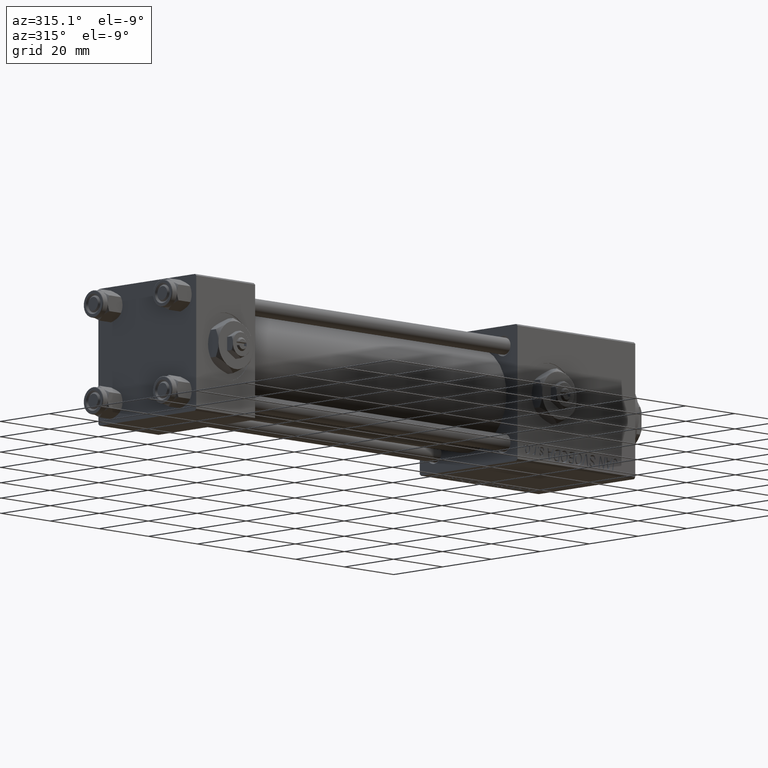
[diagram: clean part render]
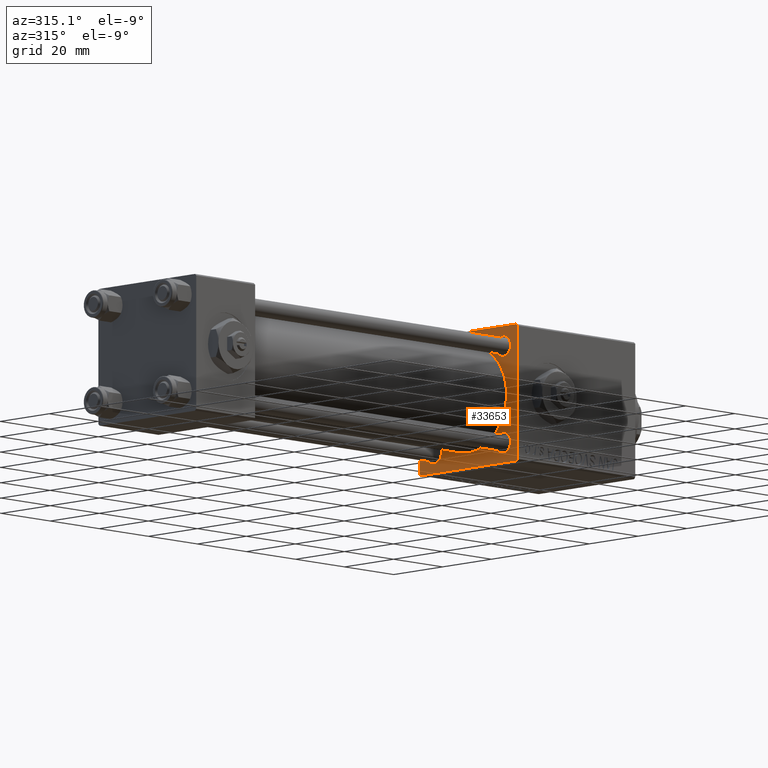
[diagram: same view with one face highlighted and labeled with its STEP entity id]
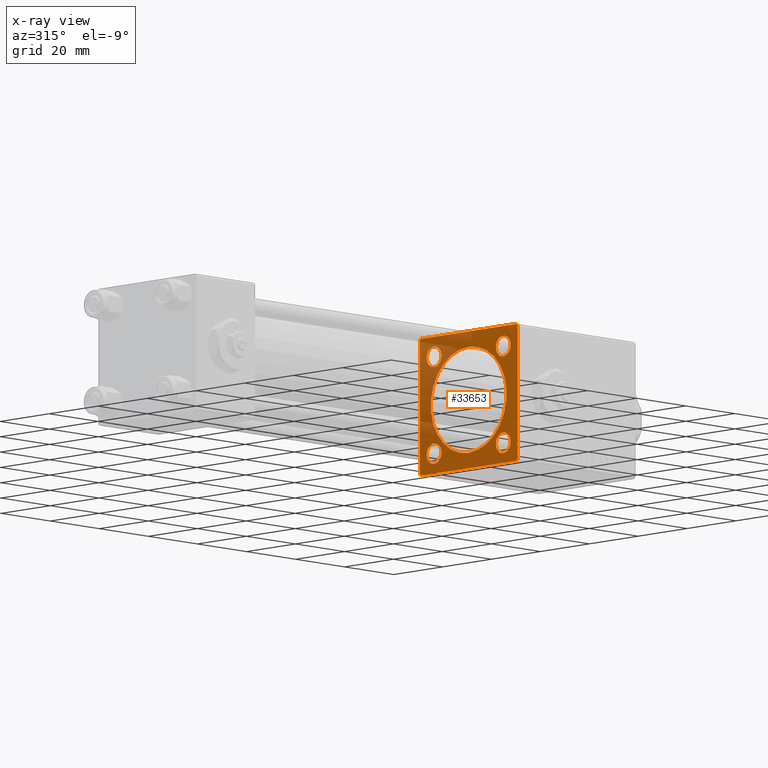
[diagram: x-ray of the same camera — body ghosted, the highlighted face saturated]
A machine part, auxiliary view. The second image highlights one B-rep face of the part: STEP entity #33653.
The next image is the same camera in x-ray: the body ghosted, the highlighted face saturated — about 35% of this face is hidden behind the body in this view.
In plain terms, the highlighted planar face has unit normal (-1, 0, 0).
Its self-contained STEP definition (entity closure, byte-faithful):
#16 = DIRECTION ( 'NONE',  ( -1.000000000000000000, 0.000000000000000000, -0.000000000000000000 ) ) ;
#138 = DIRECTION ( 'NONE',  ( 0.000000000000000000, 0.7071067811865474617, -0.7071067811865474617 ) ) ;
#258 = CARTESIAN_POINT ( 'NONE',  ( 131.0000000000000000, 14.15000000000000036, -14.15000000000000036 ) ) ;
#328 = DIRECTION ( 'NONE',  ( 0.000000000000000000, -1.000000000000000000, -8.673617379884035472E-17 ) ) ;
#1021 = VERTEX_POINT ( 'NONE', #23909 ) ;
#1230 = DIRECTION ( 'NONE',  ( 1.000000000000000000, 0.000000000000000000, 0.000000000000000000 ) ) ;
#1456 = CARTESIAN_POINT ( 'NONE',  ( 131.0000000000000000, 14.15000000000000036, -11.14999999999999680 ) ) ;
#1510 = VERTEX_POINT ( 'NONE', #10041 ) ;
#1613 = ORIENTED_EDGE ( 'NONE', *, *, #13626, .T. ) ;
#1851 = CIRCLE ( 'NONE', #6072, 3.000000000000004441 ) ;
#2056 = DIRECTION ( 'NONE',  ( 0.000000000000000000, 0.000000000000000000, 1.000000000000000000 ) ) ;
#2441 = LINE ( 'NONE', #42074, #38300 ) ;
#2598 = ORIENTED_EDGE ( 'NONE', *, *, #11548, .T. ) ;
#3222 = VERTEX_POINT ( 'NONE', #22566 ) ;
#3459 = FACE_BOUND ( 'NONE', #3840, .T. ) ;
#3511 = ORIENTED_EDGE ( 'NONE', *, *, #39711, .T. ) ;
#3726 = FACE_BOUND ( 'NONE', #39046, .T. ) ;
#3840 = EDGE_LOOP ( 'NONE', ( #9788, #48462 ) ) ;
#3848 = DIRECTION ( 'NONE',  ( 1.000000000000000000, 0.000000000000000000, 0.000000000000000000 ) ) ;
#4048 = CARTESIAN_POINT ( 'NONE',  ( 131.0000000000000000, -19.50000000000006040, 19.99999999999999645 ) ) ;
#4969 = CARTESIAN_POINT ( 'NONE',  ( 131.0000000000000000, 14.15000000000000036, -14.15000000000000036 ) ) ;
#5129 = CARTESIAN_POINT ( 'NONE',  ( 131.0000000000000000, 19.99999999999999645, 20.00000000000000000 ) ) ;
#5194 = AXIS2_PLACEMENT_3D ( 'NONE', #4969, #40935, #8451 ) ;
#5241 = VERTEX_POINT ( 'NONE', #46606 ) ;
#5389 = LINE ( 'NONE', #5129, #12959 ) ;
#5433 = VERTEX_POINT ( 'NONE', #24924 ) ;
#6035 = AXIS2_PLACEMENT_3D ( 'NONE', #40059, #3848, #7018 ) ;
#6072 = AXIS2_PLACEMENT_3D ( 'NONE', #23000, #31190, #51506 ) ;
#6464 = ORIENTED_EDGE ( 'NONE', *, *, #26534, .T. ) ;
#7018 = DIRECTION ( 'NONE',  ( 0.000000000000000000, 0.000000000000000000, -1.000000000000000000 ) ) ;
#7798 = CIRCLE ( 'NONE', #5194, 3.000000000000004441 ) ;
#7947 = CIRCLE ( 'NONE', #8797, 3.000000000000004441 ) ;
#7960 = FACE_BOUND ( 'NONE', #41612, .T. ) ;
#8451 = DIRECTION ( 'NONE',  ( 0.000000000000000000, 0.000000000000000000, 1.000000000000000000 ) ) ;
#8628 = ORIENTED_EDGE ( 'NONE', *, *, #27354, .T. ) ;
#8764 = AXIS2_PLACEMENT_3D ( 'NONE', #9457, #41426, #36962 ) ;
#8789 = CARTESIAN_POINT ( 'NONE',  ( 131.0000000000000000, -20.00000000000000000, -19.50000000000002487 ) ) ;
#8797 = AXIS2_PLACEMENT_3D ( 'NONE', #18962, #14994, #2056 ) ;
#9186 = EDGE_CURVE ( 'NONE', #22460, #31987, #28833, .T. ) ;
#9457 = CARTESIAN_POINT ( 'NONE',  ( 131.0000000000000000, -2.602085213965210642E-15, 0.000000000000000000 ) ) ;
#9788 = ORIENTED_EDGE ( 'NONE', *, *, #22536, .T. ) ;
#10041 = CARTESIAN_POINT ( 'NONE',  ( 131.0000000000000000, -19.50000000000002487, -20.00000000000000000 ) ) ;
#10209 = CARTESIAN_POINT ( 'NONE',  ( 131.0000000000000000, 19.99999999999999645, 19.50000000000002842 ) ) ;
#10965 = ORIENTED_EDGE ( 'NONE', *, *, #18113, .F. ) ;
#11074 = CARTESIAN_POINT ( 'NONE',  ( 131.0000000000000000, -14.15000000000000036, -17.15000000000000568 ) ) ;
#11371 = VERTEX_POINT ( 'NONE', #25640 ) ;
#11548 = EDGE_CURVE ( 'NONE', #21611, #43661, #16206, .T. ) ;
#12410 = CARTESIAN_POINT ( 'NONE',  ( 131.0000000000000000, -14.15000000000000036, 14.15000000000000036 ) ) ;
#12430 = DIRECTION ( 'NONE',  ( 1.000000000000000000, 0.000000000000000000, 0.000000000000000000 ) ) ;
#12959 = VECTOR ( 'NONE', #46065, 1000.000000000000000 ) ;
#13255 = EDGE_CURVE ( 'NONE', #24492, #1021, #23823, .T. ) ;
#13626 = EDGE_CURVE ( 'NONE', #19645, #1510, #16338, .T. ) ;
#13648 = AXIS2_PLACEMENT_3D ( 'NONE', #12410, #28541, #33551 ) ;
#13791 = CIRCLE ( 'NONE', #8764, 15.50000000000000000 ) ;
#13905 = AXIS2_PLACEMENT_3D ( 'NONE', #48087, #16, #35987 ) ;
#13991 = EDGE_CURVE ( 'NONE', #11371, #34656, #36521, .T. ) ;
#14475 = VERTEX_POINT ( 'NONE', #4048 ) ;
#14489 = AXIS2_PLACEMENT_3D ( 'NONE', #258, #17591, #45587 ) ;
#14668 = ORIENTED_EDGE ( 'NONE', *, *, #31968, .F. ) ;
#14698 = DIRECTION ( 'NONE',  ( -0.000000000000000000, 0.7071067811865279218, 0.7071067811865671127 ) ) ;
#14994 = DIRECTION ( 'NONE',  ( 1.000000000000000000, 0.000000000000000000, 0.000000000000000000 ) ) ;
#16206 = CIRCLE ( 'NONE', #14489, 3.000000000000004441 ) ;
#16338 = LINE ( 'NONE', #40385, #31405 ) ;
#17268 = VECTOR ( 'NONE', #43531, 1000.000000000000000 ) ;
#17591 = DIRECTION ( 'NONE',  ( 1.000000000000000000, 0.000000000000000000, 0.000000000000000000 ) ) ;
#17845 = VERTEX_POINT ( 'NONE', #32891 ) ;
#18113 = EDGE_CURVE ( 'NONE', #3222, #14475, #36560, .T. ) ;
#18293 = DIRECTION ( 'NONE',  ( 0.000000000000000000, -0.7071067811865474617, 0.7071067811865474617 ) ) ;
#18962 = CARTESIAN_POINT ( 'NONE',  ( 131.0000000000000000, 14.15000000000000036, 14.15000000000000036 ) ) ;
#19057 = CIRCLE ( 'NONE', #39323, 3.000000000000004441 ) ;
#19452 = DIRECTION ( 'NONE',  ( 0.000000000000000000, 0.000000000000000000, 1.000000000000000000 ) ) ;
#19495 = EDGE_LOOP ( 'NONE', ( #6464, #33792 ) ) ;
#19645 = VERTEX_POINT ( 'NONE', #39352 ) ;
#19733 = LINE ( 'NONE', #35877, #37789 ) ;
#20219 = LINE ( 'NONE', #36366, #34461 ) ;
#21611 = VERTEX_POINT ( 'NONE', #1456 ) ;
#21795 = CARTESIAN_POINT ( 'NONE',  ( 131.0000000000000000, 14.15000000000000036, 17.15000000000000568 ) ) ;
#22200 = CARTESIAN_POINT ( 'NONE',  ( 131.0000000000000000, -7.038826752868131828E-16, -15.50000000000000000 ) ) ;
#22460 = VERTEX_POINT ( 'NONE', #22200 ) ;
#22536 = EDGE_CURVE ( 'NONE', #38733, #5433, #1851, .T. ) ;
#22566 = CARTESIAN_POINT ( 'NONE',  ( 131.0000000000000000, 19.50000000000002487, 20.00000000000000000 ) ) ;
#22777 = EDGE_CURVE ( 'NONE', #43661, #21611, #7798, .T. ) ;
#23000 = CARTESIAN_POINT ( 'NONE',  ( 131.0000000000000000, 14.15000000000000036, 14.15000000000000036 ) ) ;
#23193 = CARTESIAN_POINT ( 'NONE',  ( 131.0000000000000000, -20.00000000000000355, 19.99999999999999645 ) ) ;
#23505 = DIRECTION ( 'NONE',  ( 1.000000000000000000, 0.000000000000000000, 0.000000000000000000 ) ) ;
#23543 = FACE_OUTER_BOUND ( 'NONE', #25511, .T. ) ;
#23823 = CIRCLE ( 'NONE', #13648, 3.000000000000004441 ) ;
#23909 = CARTESIAN_POINT ( 'NONE',  ( 131.0000000000000000, -14.15000000000000036, 17.15000000000000568 ) ) ;
#24012 = VECTOR ( 'NONE', #328, 1000.000000000000000 ) ;
#24492 = VERTEX_POINT ( 'NONE', #27496 ) ;
#24924 = CARTESIAN_POINT ( 'NONE',  ( 131.0000000000000000, 14.15000000000000036, 11.14999999999999680 ) ) ;
#25222 = VECTOR ( 'NONE', #14698, 1000.000000000000000 ) ;
#25511 = EDGE_LOOP ( 'NONE', ( #1613, #8628, #14668, #32306, #10965, #37542, #32484, #3511 ) ) ;
#25640 = CARTESIAN_POINT ( 'NONE',  ( 131.0000000000000000, -14.15000000000000036, -11.14999999999999680 ) ) ;
#26534 = EDGE_CURVE ( 'NONE', #31987, #22460, #13791, .T. ) ;
#27354 = EDGE_CURVE ( 'NONE', #1510, #44126, #2441, .T. ) ;
#27496 = CARTESIAN_POINT ( 'NONE',  ( 131.0000000000000000, -14.15000000000000036, 11.14999999999999503 ) ) ;
#27996 = CARTESIAN_POINT ( 'NONE',  ( 131.0000000000000000, -14.15000000000000036, -14.15000000000000036 ) ) ;
#28541 = DIRECTION ( 'NONE',  ( 1.000000000000000000, 0.000000000000000000, 0.000000000000000000 ) ) ;
#28562 = DIRECTION ( 'NONE',  ( 0.000000000000000000, 0.000000000000000000, 1.000000000000000000 ) ) ;
#28833 = CIRCLE ( 'NONE', #6035, 15.50000000000000000 ) ;
#30299 = EDGE_CURVE ( 'NONE', #47993, #5241, #5389, .T. ) ;
#31065 = EDGE_CURVE ( 'NONE', #5433, #38733, #7947, .T. ) ;
#31082 = LINE ( 'NONE', #51141, #25222 ) ;
#31190 = DIRECTION ( 'NONE',  ( 1.000000000000000000, 0.000000000000000000, 0.000000000000000000 ) ) ;
#31405 = VECTOR ( 'NONE', #44836, 1000.000000000000000 ) ;
#31968 = EDGE_CURVE ( 'NONE', #17845, #44126, #38803, .T. ) ;
#31987 = VERTEX_POINT ( 'NONE', #43271 ) ;
#32306 = ORIENTED_EDGE ( 'NONE', *, *, #51836, .T. ) ;
#32484 = ORIENTED_EDGE ( 'NONE', *, *, #30299, .T. ) ;
#32891 = CARTESIAN_POINT ( 'NONE',  ( 131.0000000000000000, -20.00000000000000355, 19.50000000000002487 ) ) ;
#33085 = CARTESIAN_POINT ( 'NONE',  ( 131.0000000000000000, 19.99999999999999645, 20.00000000000000000 ) ) ;
#33551 = DIRECTION ( 'NONE',  ( 0.000000000000000000, 0.000000000000000000, 1.000000000000000000 ) ) ;
#33653 = ADVANCED_FACE ( 'NONE', ( #39673, #3459, #3726, #7960, #40193, #23543 ), #43879, .T. ) ;
#33792 = ORIENTED_EDGE ( 'NONE', *, *, #9186, .T. ) ;
#34461 = VECTOR ( 'NONE', #138, 1000.000000000000114 ) ;
#34656 = VERTEX_POINT ( 'NONE', #11074 ) ;
#35419 = EDGE_CURVE ( 'NONE', #34656, #11371, #19057, .T. ) ;
#35877 = CARTESIAN_POINT ( 'NONE',  ( 131.0000000000000000, 19.74999999999999645, -19.74999999999999645 ) ) ;
#35987 = DIRECTION ( 'NONE',  ( -0.000000000000000000, 0.000000000000000000, 1.000000000000000000 ) ) ;
#36150 = EDGE_LOOP ( 'NONE', ( #45963, #45570 ) ) ;
#36366 = CARTESIAN_POINT ( 'NONE',  ( 131.0000000000000000, 19.75000000000001066, 19.75000000000001066 ) ) ;
#36521 = CIRCLE ( 'NONE', #46599, 3.000000000000004441 ) ;
#36560 = LINE ( 'NONE', #33085, #24012 ) ;
#36962 = DIRECTION ( 'NONE',  ( 0.000000000000000000, 0.000000000000000000, -1.000000000000000000 ) ) ;
#37542 = ORIENTED_EDGE ( 'NONE', *, *, #50050, .T. ) ;
#37789 = VECTOR ( 'NONE', #48736, 1000.000000000000114 ) ;
#37894 = CARTESIAN_POINT ( 'NONE',  ( 131.0000000000000000, 14.15000000000000036, -17.15000000000000568 ) ) ;
#38300 = VECTOR ( 'NONE', #18293, 1000.000000000000114 ) ;
#38733 = VERTEX_POINT ( 'NONE', #21795 ) ;
#38803 = LINE ( 'NONE', #23193, #17268 ) ;
#39046 = EDGE_LOOP ( 'NONE', ( #2598, #48833 ) ) ;
#39323 = AXIS2_PLACEMENT_3D ( 'NONE', #27996, #23505, #44104 ) ;
#39352 = CARTESIAN_POINT ( 'NONE',  ( 131.0000000000000000, 19.49999999999999645, -20.00000000000000000 ) ) ;
#39673 = FACE_BOUND ( 'NONE', #36150, .T. ) ;
#39711 = EDGE_CURVE ( 'NONE', #5241, #19645, #19733, .T. ) ;
#40009 = EDGE_CURVE ( 'NONE', #1021, #24492, #43681, .T. ) ;
#40059 = CARTESIAN_POINT ( 'NONE',  ( 131.0000000000000000, -2.602085213965210642E-15, 0.000000000000000000 ) ) ;
#40193 = FACE_BOUND ( 'NONE', #19495, .T. ) ;
#40244 = ORIENTED_EDGE ( 'NONE', *, *, #13991, .T. ) ;
#40385 = CARTESIAN_POINT ( 'NONE',  ( 131.0000000000000000, 19.99999999999999645, -20.00000000000000000 ) ) ;
#40935 = DIRECTION ( 'NONE',  ( 1.000000000000000000, 0.000000000000000000, 0.000000000000000000 ) ) ;
#41426 = DIRECTION ( 'NONE',  ( 1.000000000000000000, 0.000000000000000000, 0.000000000000000000 ) ) ;
#41612 = EDGE_LOOP ( 'NONE', ( #40244, #51504 ) ) ;
#42074 = CARTESIAN_POINT ( 'NONE',  ( 131.0000000000000000, -19.75000000000001066, -19.75000000000001066 ) ) ;
#43271 = CARTESIAN_POINT ( 'NONE',  ( 131.0000000000000000, -2.602085213965210642E-15, 15.50000000000000000 ) ) ;
#43531 = DIRECTION ( 'NONE',  ( 0.000000000000000000, 8.673617379884036705E-17, -1.000000000000000000 ) ) ;
#43661 = VERTEX_POINT ( 'NONE', #37894 ) ;
#43681 = CIRCLE ( 'NONE', #50394, 3.000000000000004441 ) ;
#43879 = PLANE ( 'NONE',  #13905 ) ;
#44104 = DIRECTION ( 'NONE',  ( 0.000000000000000000, 0.000000000000000000, 1.000000000000000000 ) ) ;
#44126 = VERTEX_POINT ( 'NONE', #8789 ) ;
#44836 = DIRECTION ( 'NONE',  ( 0.000000000000000000, -1.000000000000000000, 0.000000000000000000 ) ) ;
#45570 = ORIENTED_EDGE ( 'NONE', *, *, #13255, .T. ) ;
#45587 = DIRECTION ( 'NONE',  ( 0.000000000000000000, 0.000000000000000000, 1.000000000000000000 ) ) ;
#45963 = ORIENTED_EDGE ( 'NONE', *, *, #40009, .T. ) ;
#46065 = DIRECTION ( 'NONE',  ( 0.000000000000000000, 0.000000000000000000, -1.000000000000000000 ) ) ;
#46599 = AXIS2_PLACEMENT_3D ( 'NONE', #50078, #1230, #19452 ) ;
#46606 = CARTESIAN_POINT ( 'NONE',  ( 131.0000000000000000, 19.99999999999999645, -19.50000000000000000 ) ) ;
#47993 = VERTEX_POINT ( 'NONE', #10209 ) ;
#48087 = CARTESIAN_POINT ( 'NONE',  ( 131.0000000000000000, 0.000000000000000000, 0.000000000000000000 ) ) ;
#48462 = ORIENTED_EDGE ( 'NONE', *, *, #31065, .T. ) ;
#48616 = CARTESIAN_POINT ( 'NONE',  ( 131.0000000000000000, -14.15000000000000036, 14.15000000000000036 ) ) ;
#48736 = DIRECTION ( 'NONE',  ( -0.000000000000000000, -0.7071067811865474617, -0.7071067811865474617 ) ) ;
#48833 = ORIENTED_EDGE ( 'NONE', *, *, #22777, .T. ) ;
#50050 = EDGE_CURVE ( 'NONE', #3222, #47993, #20219, .T. ) ;
#50078 = CARTESIAN_POINT ( 'NONE',  ( 131.0000000000000000, -14.15000000000000036, -14.15000000000000036 ) ) ;
#50394 = AXIS2_PLACEMENT_3D ( 'NONE', #48616, #12430, #28562 ) ;
#51141 = CARTESIAN_POINT ( 'NONE',  ( 131.0000000000000000, -19.75000000000056843, 19.74999999999947420 ) ) ;
#51504 = ORIENTED_EDGE ( 'NONE', *, *, #35419, .T. ) ;
#51506 = DIRECTION ( 'NONE',  ( 0.000000000000000000, 0.000000000000000000, 1.000000000000000000 ) ) ;
#51836 = EDGE_CURVE ( 'NONE', #17845, #14475, #31082, .T. ) ;